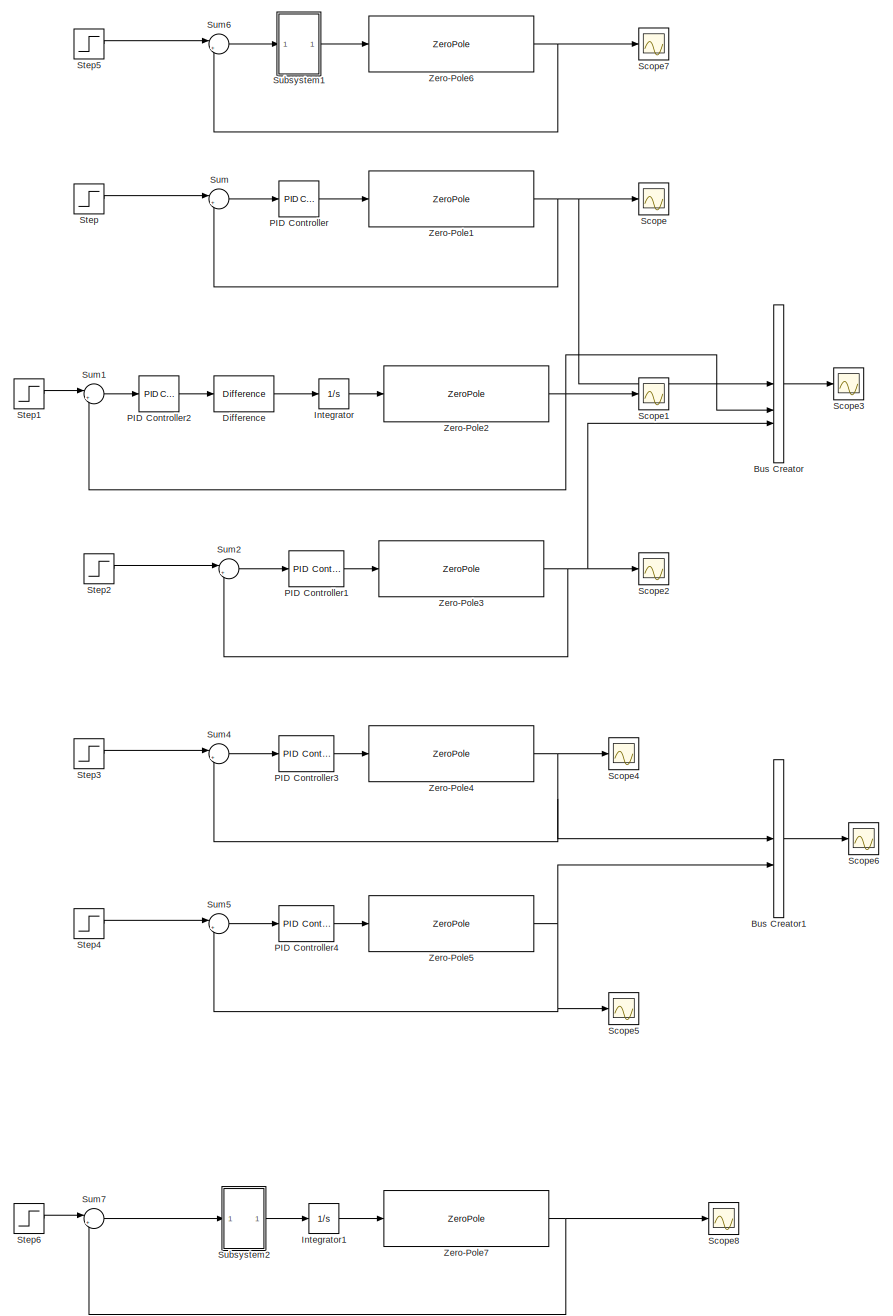
[diagram: root canvas - part 1/1, most of the canvas]
MODEL slx_57a3e91eb0a2
KIND model
CONFIG AbsTol = auto
CONFIG EnableMultiTasking = off
CONFIG FixedStep = auto
CONFIG MaxStep = auto
CONFIG MinStep = auto
CONFIG RelTol = 1e-3
CONFIG SampleTimeConstraint = Unconstrained
CONFIG SolverName = VariableStepAuto
CONFIG StartTime = 0.0
CONFIG StopTime = 20
BLOCK [BusCreator] Bus Creator
  DisplayOption = bar
  InheritFromInputs = on
  Inputs = 3
BLOCK [BusCreator] Bus Creator1
  DisplayOption = bar
  InheritFromInputs = on
  Inputs = 2
BLOCK [Reference] Difference  REF=simulink/Discrete/Difference
  SourceBlock = simulink/Discrete/Difference
  SourceType = Difference
BLOCK [Integrator] Integrator
BLOCK [Integrator] Integrator1
BLOCK [Reference] PID Controller  REF=slpidlib/PID Controller
  LibrarySourceBlock = simulink/Continuous/PID Controller
  SourceBlock = slpidlib/PID Controller
  SourceType = PID 1dof
BLOCK [Reference] PID Controller1  REF=slpidlib/PID Controller
  LibrarySourceBlock = simulink/Continuous/PID Controller
  SourceBlock = slpidlib/PID Controller
  SourceType = PID 1dof
BLOCK [Reference] PID Controller2  REF=slpidlib/PID Controller
  LibrarySourceBlock = simulink/Continuous/PID Controller
  SourceBlock = slpidlib/PID Controller
  SourceType = PID 1dof
BLOCK [Reference] PID Controller3  REF=slpidlib/PID Controller
  LibrarySourceBlock = simulink/Continuous/PID Controller
  SourceBlock = slpidlib/PID Controller
  SourceType = PID 1dof
BLOCK [Reference] PID Controller4  REF=slpidlib/PID Controller
  LibrarySourceBlock = simulink/Continuous/PID Controller
  SourceBlock = slpidlib/PID Controller
  SourceType = PID 1dof
BLOCK [Scope] Scope
  Floating = off
  NumInputPorts = 1
  ScopeSpecificationString = Simulink.scopes.TimeScopeBlockCfg('CurrentConfiguration', extmgr.ConfigurationSet(extmgr.Configuration('Core','General UI',true),extmgr.Configuration('Core','Source UI',true),extmgr.Configuration('Sources','WiredSimulink',true),extmgr.Configuration('Visuals','Time Domain',true,'SerializedDisplays',{struct('MinYLimReal','-0.13018','MaxYLimReal','1.17166','YLabelReal','','MinYLimMag','0.00000','MaxY...<+1363ch>
BLOCK [Scope] Scope1
  Floating = off
  NumInputPorts = 1
  ScopeSpecificationString = Simulink.scopes.TimeScopeBlockCfg('CurrentConfiguration', extmgr.ConfigurationSet(extmgr.Configuration('Core','General UI',true),extmgr.Configuration('Core','Source UI',true),extmgr.Configuration('Sources','WiredSimulink',true,'DataLoggingVariableName','ScopeData1'),extmgr.Configuration('Visuals','Time Domain',true,'SerializedDisplays',{struct('MinYLimReal','-1.25379','MaxYLimReal','3.68595','YLab...<+1428ch>
BLOCK [Scope] Scope2
  Floating = off
  NumInputPorts = 1
  ScopeSpecificationString = Simulink.scopes.TimeScopeBlockCfg('CurrentConfiguration', extmgr.ConfigurationSet(extmgr.Configuration('Core','General UI',true),extmgr.Configuration('Core','Source UI',true),extmgr.Configuration('Sources','WiredSimulink',true,'DataLoggingVariableName','ScopeData2'),extmgr.Configuration('Visuals','Time Domain',true,'SerializedDisplays',{struct('MinYLimReal','-0.13848','MaxYLimReal','1.24634','YLab...<+1402ch>
BLOCK [Scope] Scope3
  Floating = off
  NumInputPorts = 1
  ScopeSpecificationString = Simulink.scopes.TimeScopeBlockCfg('CurrentConfiguration', extmgr.ConfigurationSet(extmgr.Configuration('Core','General UI',true),extmgr.Configuration('Core','Source UI',true),extmgr.Configuration('Sources','WiredSimulink',true,'DataLoggingVariableName','ScopeData3'),extmgr.Configuration('Visuals','Time Domain',true,'SerializedDisplays',{struct('MinYLimReal','-1.25379','MaxYLimReal','3.68595','YLab...<+1426ch>
BLOCK [Scope] Scope4
  Floating = off
  NumInputPorts = 1
  ScopeSpecificationString = Simulink.scopes.TimeScopeBlockCfg('CurrentConfiguration', extmgr.ConfigurationSet(extmgr.Configuration('Core','General UI',true),extmgr.Configuration('Core','Source UI',true),extmgr.Configuration('Sources','WiredSimulink',true,'DataLoggingVariableName','ScopeData1'),extmgr.Configuration('Visuals','Time Domain',true,'SerializedDisplays',{struct('MinYLimReal','-0.20984','MaxYLimReal','1.8886','YLabe...<+1394ch>
BLOCK [Scope] Scope5
  Floating = off
  NumInputPorts = 1
  ScopeSpecificationString = Simulink.scopes.TimeScopeBlockCfg('CurrentConfiguration', extmgr.ConfigurationSet(extmgr.Configuration('Core','General UI',true),extmgr.Configuration('Core','Source UI',true),extmgr.Configuration('Sources','WiredSimulink',true,'DataLoggingVariableName','ScopeData2'),extmgr.Configuration('Visuals','Time Domain',true,'SerializedDisplays',{struct('MinYLimReal','-0.20517','MaxYLimReal','1.84651','YLab...<+1398ch>
BLOCK [Scope] Scope6
  Floating = off
  NumInputPorts = 1
  ScopeSpecificationString = Simulink.scopes.TimeScopeBlockCfg('CurrentConfiguration', extmgr.ConfigurationSet(extmgr.Configuration('Core','General UI',true),extmgr.Configuration('Core','Source UI',true),extmgr.Configuration('Sources','WiredSimulink',true,'DataLoggingVariableName','ScopeData3'),extmgr.Configuration('Visuals','Time Domain',true,'SerializedDisplays',{struct('MinYLimReal','-0.20984','MaxYLimReal','1.8886','YLabe...<+1411ch>
BLOCK [Scope] Scope7
  Floating = off
  NumInputPorts = 1
  ScopeSpecificationString = Simulink.scopes.TimeScopeBlockCfg('CurrentConfiguration', extmgr.ConfigurationSet(extmgr.Configuration('Core','General UI',true),extmgr.Configuration('Core','Source UI',true),extmgr.Configuration('Sources','WiredSimulink',true,'DataLoggingVariableName','ScopeData1'),extmgr.Configuration('Visuals','Time Domain',true,'SerializedDisplays',{struct('MinYLimReal','-0.13191','MaxYLimReal','1.18721','YLab...<+1402ch>
BLOCK [Scope] Scope8
  Floating = off
  NumInputPorts = 1
  ScopeSpecificationString = Simulink.scopes.TimeScopeBlockCfg('CurrentConfiguration', extmgr.ConfigurationSet(extmgr.Configuration('Core','General UI',true),extmgr.Configuration('Core','Source UI',true),extmgr.Configuration('Sources','WiredSimulink',true,'DataLoggingVariableName','ScopeData2'),extmgr.Configuration('Visuals','Time Domain',true,'SerializedDisplays',{struct('MinYLimReal','-0.22111','MaxYLimReal','1.99001','YLab...<+1402ch>
BLOCK [Step] Step
  SampleTime = 0
  Time = 0
BLOCK [Step] Step1
  SampleTime = 0
  Time = 0
BLOCK [Step] Step2
  SampleTime = 0
  Time = 0
BLOCK [Step] Step3
  SampleTime = 0
  Time = 0
BLOCK [Step] Step4
  SampleTime = 0
  Time = 0
BLOCK [Step] Step5
  SampleTime = 0
  Time = 0
BLOCK [Step] Step6
  SampleTime = 0
  Time = 0
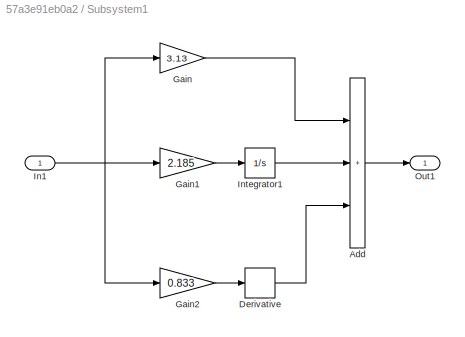
BLOCK [SubSystem] Subsystem1
BLOCK [Sum] Subsystem1/Add
  IconShape = rectangular
  Inputs = +++
BLOCK [Derivative] Subsystem1/Derivative
BLOCK [Gain] Subsystem1/Gain
  Gain = 3.13
BLOCK [Gain] Subsystem1/Gain1
  Gain = 2.185
BLOCK [Gain] Subsystem1/Gain2
  Gain = 0.833
BLOCK [Inport] Subsystem1/In1
BLOCK [Integrator] Subsystem1/Integrator1
BLOCK [Outport] Subsystem1/Out1
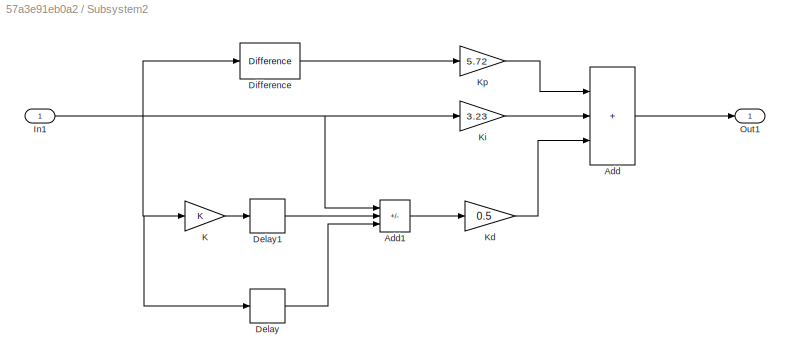
BLOCK [SubSystem] Subsystem2
BLOCK [Sum] Subsystem2/Add
  IconShape = rectangular
  Inputs = +++
BLOCK [Sum] Subsystem2/Add1
  IconShape = rectangular
  Inputs = +-+
BLOCK [Delay] Subsystem2/Delay
  InitialCondition = 0
  InputPortMap = u0
BLOCK [Delay] Subsystem2/Delay1
  DelayLength = 1
  InitialCondition = 0
  InputPortMap = u0
BLOCK [Reference] Subsystem2/Difference  REF=simulink/Discrete/Difference
  SourceBlock = simulink/Discrete/Difference
  SourceType = Difference
BLOCK [Inport] Subsystem2/In1
BLOCK [Gain] Subsystem2/K
BLOCK [Gain] Subsystem2/Kd
  Gain = 0.5
BLOCK [Gain] Subsystem2/Ki
  Gain = 3.23
BLOCK [Gain] Subsystem2/Kp
  Gain = 5.72
BLOCK [Outport] Subsystem2/Out1
BLOCK [Sum] Sum
  Inputs = |+-
BLOCK [Sum] Sum1
  Inputs = |+-
BLOCK [Sum] Sum2
  Inputs = |+-
BLOCK [Sum] Sum4
  Inputs = |+-
BLOCK [Sum] Sum5
  Inputs = |+-
BLOCK [Sum] Sum6
  Inputs = |+-
BLOCK [Sum] Sum7
  Inputs = |+-
BLOCK [ZeroPole] Zero-Pole1
  Gain = [10]
  Poles = [-1 -3 -5]
  Zeros = []
BLOCK [ZeroPole] Zero-Pole2
  Gain = [10]
  Poles = [-1 -3 -5]
  Zeros = []
BLOCK [ZeroPole] Zero-Pole3
  Gain = [10]
  Poles = [-1 -3 -5]
  Zeros = []
BLOCK [ZeroPole] Zero-Pole4
  Gain = [10]
  Poles = [-1 -3 -5]
  Zeros = []
BLOCK [ZeroPole] Zero-Pole5
  Gain = [10]
  Poles = [-1 -3 -5]
  Zeros = []
BLOCK [ZeroPole] Zero-Pole6
  Gain = [10]
  Poles = [-1 -3 -5]
  Zeros = []
BLOCK [ZeroPole] Zero-Pole7
  Gain = [10]
  Poles = [-1 -3 -5]
  Zeros = []
LINE Bus Creator1:1 -> Scope6:1
LINE Bus Creator:1 -> Scope3:1
LINE Difference:1 -> Integrator:1
LINE Integrator1:1 -> Zero-Pole7:1
LINE Integrator:1 -> Zero-Pole2:1
LINE PID Controller1:1 -> Zero-Pole3:1
LINE PID Controller2:1 -> Difference:1
LINE PID Controller3:1 -> Zero-Pole4:1
LINE PID Controller4:1 -> Zero-Pole5:1
LINE PID Controller:1 -> Zero-Pole1:1
LINE Step1:1 -> Sum1:1
LINE Step2:1 -> Sum2:1
LINE Step3:1 -> Sum4:1
LINE Step4:1 -> Sum5:1
LINE Step5:1 -> Sum6:1
LINE Step6:1 -> Sum7:1
LINE Step:1 -> Sum:1
LINE Subsystem1/Add:1 -> Subsystem1/Out1:1
LINE Subsystem1/Derivative:1 -> Subsystem1/Add:3
LINE Subsystem1/Gain1:1 -> Subsystem1/Integrator1:1
LINE Subsystem1/Gain2:1 -> Subsystem1/Derivative:1
LINE Subsystem1/Gain:1 -> Subsystem1/Add:1
NET Subsystem1/In1:1 -> Subsystem1/Gain1:1, Subsystem1/Gain2:1, Subsystem1/Gain:1
LINE Subsystem1/Integrator1:1 -> Subsystem1/Add:2
LINE Subsystem1:1 -> Zero-Pole6:1
LINE Subsystem2/Add1:1 -> Subsystem2/Kd:1
LINE Subsystem2/Add:1 -> Subsystem2/Out1:1
LINE Subsystem2/Delay1:1 -> Subsystem2/Add1:2
LINE Subsystem2/Delay:1 -> Subsystem2/Add1:3
LINE Subsystem2/Difference:1 -> Subsystem2/Kp:1
NET Subsystem2/In1:1 -> Subsystem2/Add1:1, Subsystem2/Delay:1, Subsystem2/Difference:1, Subsystem2/K:1, Subsystem2/Ki:1
LINE Subsystem2/K:1 -> Subsystem2/Delay1:1
LINE Subsystem2/Kd:1 -> Subsystem2/Add:3
LINE Subsystem2/Ki:1 -> Subsystem2/Add:2
LINE Subsystem2/Kp:1 -> Subsystem2/Add:1
LINE Subsystem2:1 -> Integrator1:1
LINE Sum1:1 -> PID Controller2:1
LINE Sum2:1 -> PID Controller1:1
LINE Sum4:1 -> PID Controller3:1
LINE Sum5:1 -> PID Controller4:1
LINE Sum6:1 -> Subsystem1:1
LINE Sum7:1 -> Subsystem2:1
LINE Sum:1 -> PID Controller:1
NET Zero-Pole1:1 -> Bus Creator:1, Scope:1, Sum:2
NET Zero-Pole2:1 -> Bus Creator:2, Scope1:1, Sum1:2
NET Zero-Pole3:1 -> Bus Creator:3, Scope2:1, Sum2:2
NET Zero-Pole4:1 -> Bus Creator1:1, Scope4:1, Sum4:2
NET Zero-Pole5:1 -> Bus Creator1:2, Scope5:1, Sum5:2
NET Zero-Pole6:1 -> Scope7:1, Sum6:2
NET Zero-Pole7:1 -> Scope8:1, Sum7:2
note: NET lines group one-source signal fan-out (src -> all destinations, sorted); 1:1 wires keep LINE
